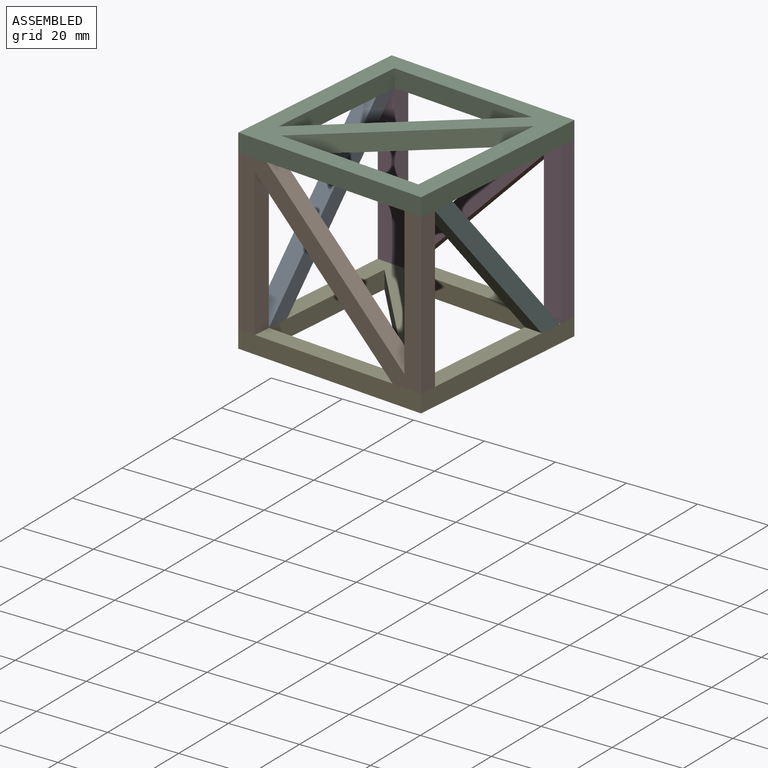
[diagram: assembled view]
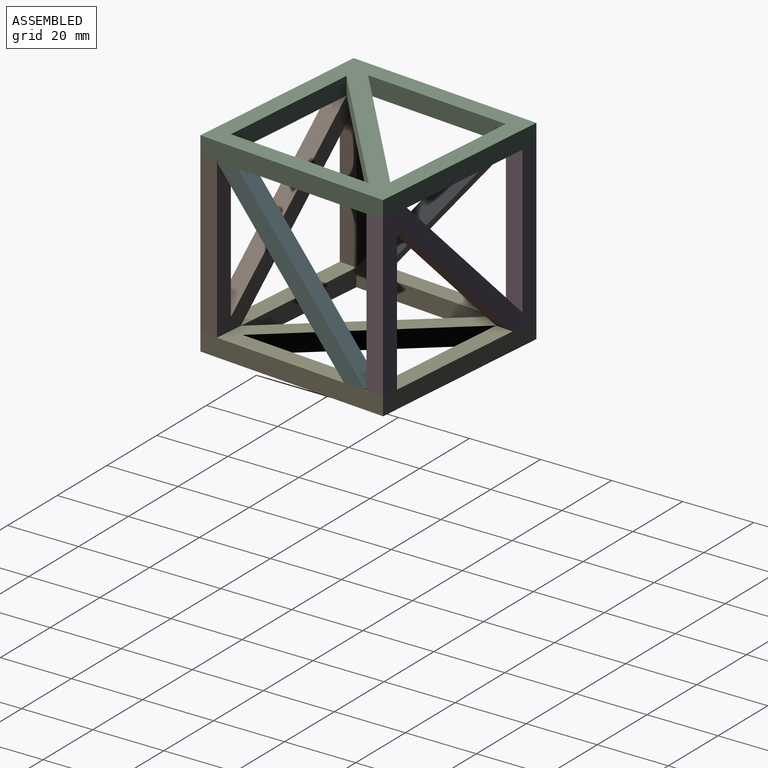
[diagram: assembled view, second angle]
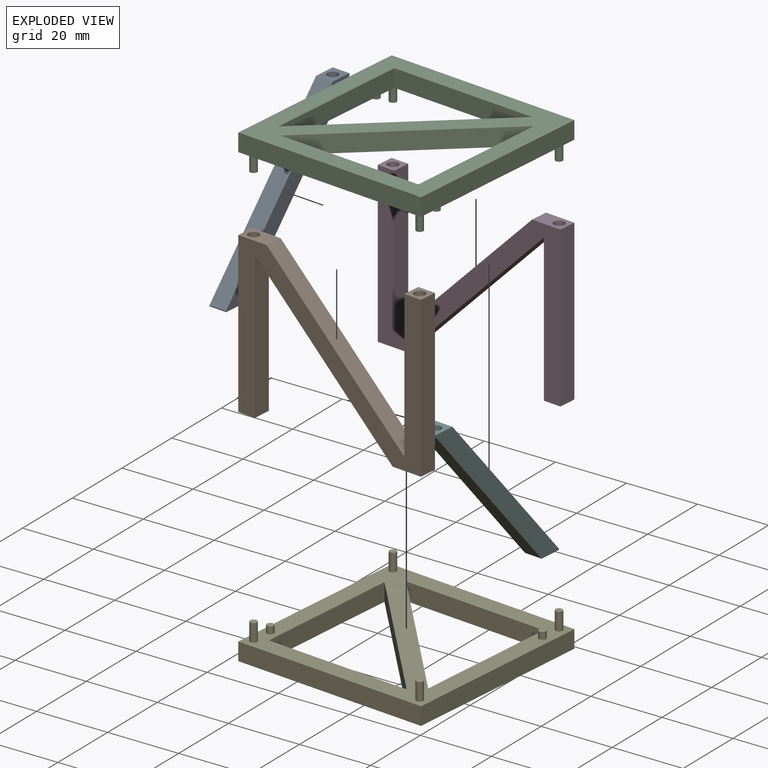
[diagram: exploded view]
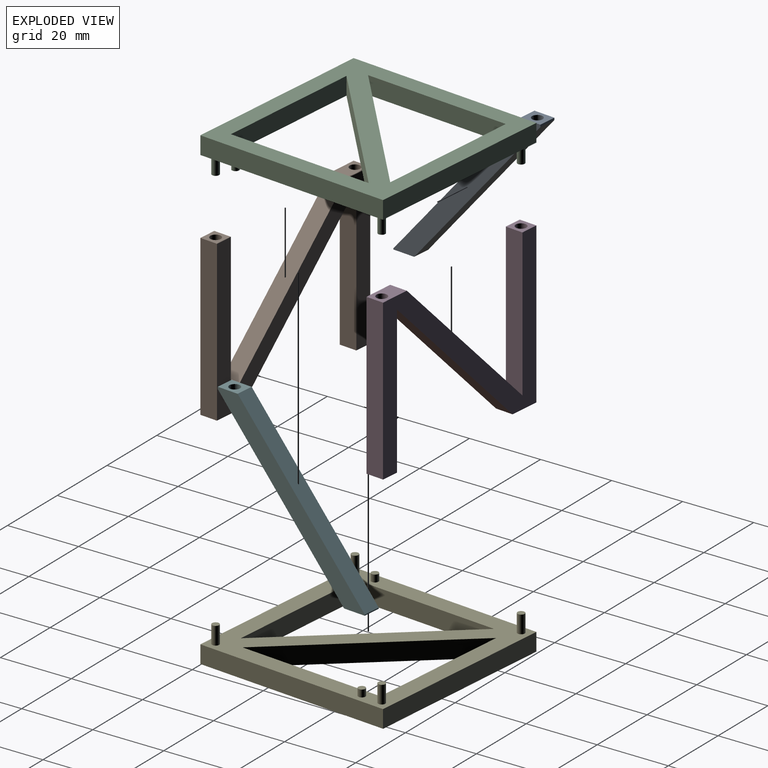
[diagram: exploded view, second angle]
ASSEMBLY  parts=6 mates=16
PART A: 12 faces, bbox 44.3x5x45 mm
  f0: plane 44.42x38mm, normal (-0.76,0,-0.65), area 292.3mm2, adj f1,f5,f6,f7
  f1: plane 6.25x5mm, normal (0,0,-1), area 24.2mm2, adj f0,f2,f6,f7,f10
  f2: plane 5x0.29mm, normal (1,0,0), area 1.5mm2, adj f1,f3,f6,f7
  f3: plane 44.71x38.25mm, normal (0.76,0,0.65), area 294.2mm2, adj f2,f4,f6,f7
  f4: plane 6x5mm, normal (0,0,1), area 22.9mm2, adj f3,f5,f6,f7,f8
  f5: plane 5x0.58mm, normal (-1,0,0), area 2.9mm2, adj f0,f4,f6,f7
  f6: plane 45x44.25mm, normal (0,-1,0), area 292.3mm2, adj f0,f1,f2,f3,f4,f5
  f7: plane 45x44.25mm, normal (0,1,0), area 292.3mm2, adj f0,f1,f2,f3,f4,f5
  f8: cylinder r=1.5mm len=3mm, axis (0,0,1), area 18.8mm2, adj f4,f9
  f9: plane 3x3mm, normal (0,0,1), area 7.1mm2, adj f8
  f10: cylinder r=1.5mm len=3mm, axis (0,0,-1), area 18.8mm2, adj f1,f11
  f11: plane 3x3mm, normal (0,0,-1), area 7.1mm2, adj f10
PART B: 20 faces, bbox 55x5x45 mm
  f0: plane 5x5mm, normal (0,0,1), area 17.9mm2, adj f1,f9,f10,f11,f14
  f1: plane 41.46x5mm, normal (-1,0,0), area 207.3mm2, adj f0,f2,f10,f11
  f2: plane 41.46x41.46mm, normal (0.71,0,0.71), area 293.2mm2, adj f1,f3,f10,f11
  f3: plane 8.54x5mm, normal (0,0,1), area 35.6mm2, adj f2,f4,f10,f11,f12
  f4: plane 45x5mm, normal (-1,0,0), area 225mm2, adj f3,f5,f10,f11
  f5: plane 5x5mm, normal (0,0,-1), area 17.9mm2, adj f4,f6,f10,f11,f18
  f6: plane 41.46x5mm, normal (1,0,0), area 207.3mm2, adj f5,f7,f10,f11
  f7: plane 41.46x41.46mm, normal (-0.71,0,-0.71), area 293.2mm2, adj f6,f8,f10,f11
  f8: plane 8.54x5mm, normal (0,0,-1), area 35.6mm2, adj f7,f9,f10,f11,f16
  f9: plane 45x5mm, normal (1,0,0), area 225mm2, adj f0,f8,f10,f11
  f10: plane 55x45mm, normal (0,-1,0), area 755.7mm2, adj f0,f1,f2,f3,f4,f5,f6,f7
  f11: plane 55x45mm, normal (0,1,0), area 755.7mm2, adj f0,f1,f2,f3,f4,f5,f6,f7
  f12: cylinder r=1.5mm len=5.5mm, axis (0,0,1), area 51.8mm2, adj f3,f13
  f13: plane 3x3mm, normal (0,0,1), area 7.1mm2, adj f12
  f14: cylinder r=1.5mm len=5.5mm, axis (0,0,1), area 51.8mm2, adj f0,f15
  f15: plane 3x3mm, normal (0,0,1), area 7.1mm2, adj f14
  f16: cylinder r=1.5mm len=5.5mm, axis (0,0,-1), area 51.8mm2, adj f8,f17
  f17: plane 3x3mm, normal (0,0,-1), area 7.1mm2, adj f16
  f18: cylinder r=1.5mm len=5.5mm, axis (0,0,-1), area 51.8mm2, adj f5,f19
  f19: plane 3x3mm, normal (0,0,-1), area 7.1mm2, adj f18
PART C: 24 faces, bbox 55x55x10 mm
  f0: plane 41.46x5mm, normal (1,0,0), area 207.3mm2, adj f1,f9,f10,f11
  f1: plane 41.46x41.46mm, normal (-0.71,-0.71,0), area 293.2mm2, adj f0,f9,f10,f11
  f2: plane 55x5mm, normal (0,1,0), area 275mm2, adj f3,f7,f10,f11
  f3: plane 55x5mm, normal (-1,0,0), area 275mm2, adj f2,f4,f10,f11
  f4: plane 55x5mm, normal (0,-1,0), area 275mm2, adj f3,f7,f10,f11
  f5: plane 41.46x41.46mm, normal (0.71,0.71,0), area 293.2mm2, adj f6,f8,f10,f11
  f6: plane 41.46x5mm, normal (0,-1,0), area 207.3mm2, adj f5,f8,f10,f11
  f7: plane 55x5mm, normal (1,0,0), area 275mm2, adj f2,f4,f10,f11
  f8: plane 41.46x5mm, normal (-1,0,0), area 207.3mm2, adj f5,f6,f10,f11
  f9: plane 41.46x5mm, normal (0,1,0), area 207.3mm2, adj f0,f1,f10,f11
  f10: plane 55x55mm, normal (0,0,1), area 1286.8mm2, adj f0,f1,f2,f3,f4,f5,f6,f7
  f11: plane 55x55mm, normal (0,0,-1), area 1305.7mm2, adj f0,f1,f2,f3,f4,f5,f6,f7
  f12: cylinder r=1mm len=5mm, axis (0,0,-1), area 31.4mm2, adj f10,f13
  f13: plane 2x2mm, normal (0,0,1), area 3.1mm2, adj f12
  f14: cylinder r=1mm len=5mm, axis (0,0,-1), area 31.4mm2, adj f10,f15
  f15: plane 2x2mm, normal (0,0,1), area 3.1mm2, adj f14
  f16: cylinder r=1mm len=5mm, axis (0,0,-1), area 31.4mm2, adj f10,f17
  f17: plane 2x2mm, normal (0,0,1), area 3.1mm2, adj f16
  f18: cylinder r=1mm len=5mm, axis (0,0,-1), area 31.4mm2, adj f10,f19
  f19: plane 2x2mm, normal (0,0,1), area 3.1mm2, adj f18
  f20: cylinder r=1mm len=2mm, axis (0,0,-1), area 12.6mm2, adj f10,f21
  f21: plane 2x2mm, normal (0,0,1), area 3.1mm2, adj f20
  f22: cylinder r=1mm len=2mm, axis (0,0,-1), area 12.6mm2, adj f10,f23
  f23: plane 2x2mm, normal (0,0,1), area 3.1mm2, adj f22
PART D: same geometry as B
PART E: same geometry as C
PART F: same geometry as A
PLACE A rot(axis=(0,0,-1),95deg) t=(-50.75,-174,-47.9)mm
PLACE B rot(axis=(0,0,-1),5deg) t=(-0.5,-173.38,-42.9)mm
PLACE C rot(axis=(0.04,1,0),180deg) t=(-25.93,-148.57,7.1)mm
PLACE D rot(axis=(0,0,1),175deg) t=(-51.37,-123.76,-42.9)mm
PLACE E rot(axis=(0,0,-1),5deg) t=(-25.93,-148.57,-47.9)mm
PLACE F rot(axis=(0,0,1),85deg) t=(-1.15,-123.38,-47.9)mm
MATE planar D.f8 <-> E.f10  axis (0,0,-1) through (-42.43,-119.52,-42.9)mm
MATE planar D.f0 <-> C.f10  axis (0,0,1) through (-51.15,-121.27,2.1)mm
MATE cylindrical B.f14 <-> E.f14  axis (0,0,-1) through (-3.21,-175.65,-42.9)mm
MATE planar A.f6 <-> C.f7  axis (-1,0.09,0) through (-51.94,-130.23,2.1)mm
MATE planar F.f8 <-> C.f10  axis (0,0,1) through (-2.71,-169.92,2.1)mm
MATE cylindrical D.f16 <-> C.f16  axis (0,0,1) through (-48.66,-121.49,2.1)mm
MATE cylindrical F.f10 <-> E.f22  axis (0,0,-1) through (0.63,-131.82,-42.9)mm
MATE planar E.f10 <-> B.f8  axis (0,0,1) through (-25.93,-148.57,-42.9)mm
MATE cylindrical E.f12 <-> D.f16  axis (0,0,-1) through (-48.66,-121.49,-40.4)mm
MATE planar A.f4 <-> C.f10  axis (0,0,1) through (-49.45,-130.45,2.1)mm
MATE cylindrical D.f12 <-> C.f12  axis (0,0,1) through (1.15,-125.84,2.1)mm
MATE cylindrical A.f8 <-> C.f22  axis (0,0,1) through (-49.18,-127.46,2.1)mm
MATE cylindrical E.f16 <-> D.f12  axis (0,0,-1) through (1.15,-125.84,-40.4)mm
MATE cylindrical E.f18 <-> B.f12  axis (0,0,-1) through (-53.02,-171.3,-40.4)mm
MATE planar F.f6 <-> C.f3  axis (1,-0.09,0) through (1.44,-151.21,-20.41)mm
MATE parallel E.f10 <-> B.f8  axis (0,0,1) through (-9,-172.64,-42.9)mm
